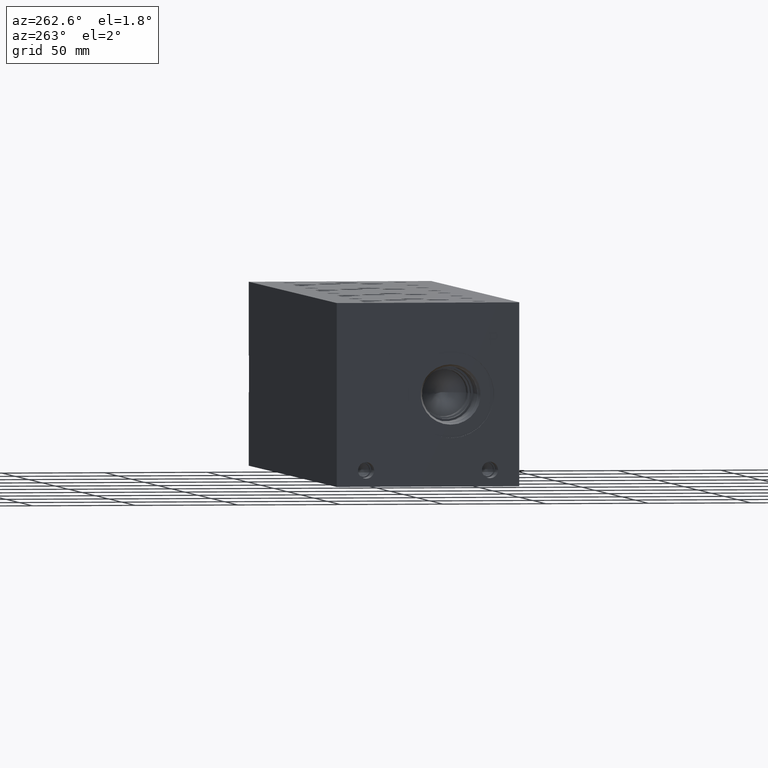
[diagram: clean part render]
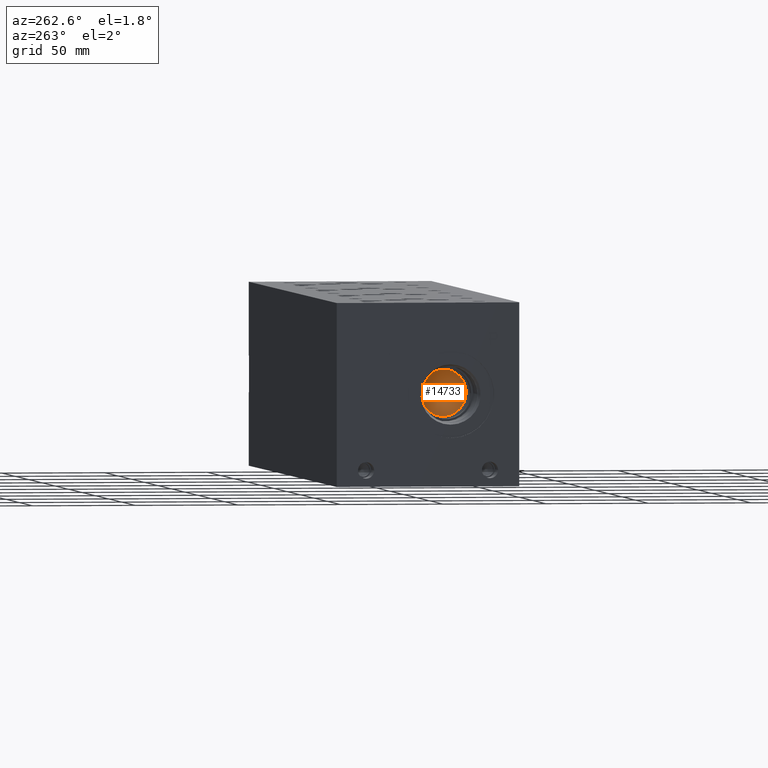
[diagram: same view with one face highlighted and labeled with its STEP entity id]
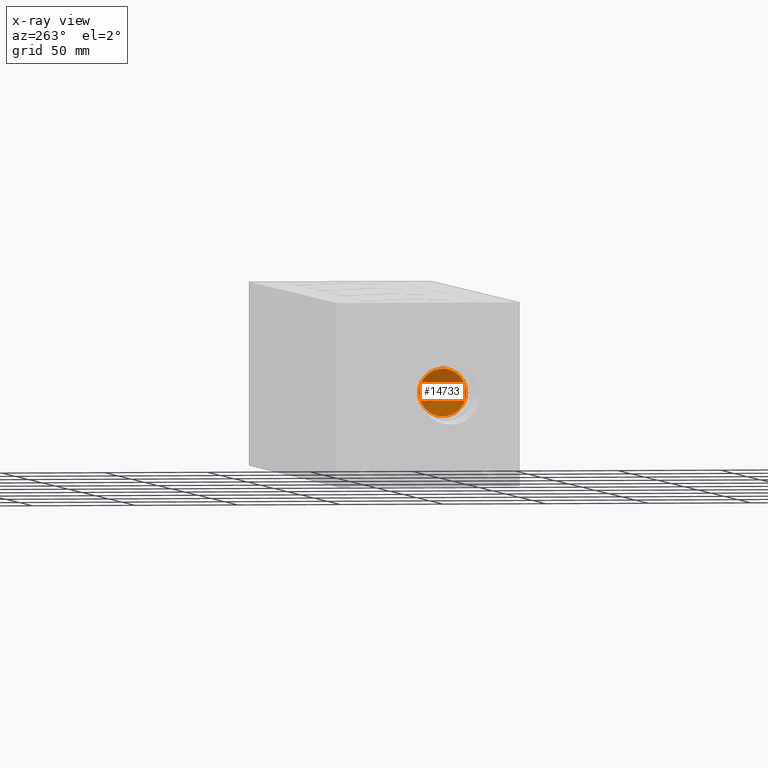
[diagram: x-ray of the same camera — body ghosted, the highlighted face saturated]
A machine part, auxiliary view. The second image highlights one B-rep face of the part: STEP entity #14733.
The next image is the same camera in x-ray: the body ghosted, the highlighted face saturated — about 0% of this face is hidden behind the body in this view.
In plain terms, the highlighted conical surface has half-angle 60 deg.
Its self-contained STEP definition (entity closure, byte-faithful):
#133=CONICAL_SURFACE('',#15400,5.7531,1.0471975511966);
#266=CIRCLE('',#15401,11.5062);
#267=CIRCLE('',#15402,11.5062);
#1865=FACE_OUTER_BOUND('',#2710,.T.);
#2710=EDGE_LOOP('',(#12144,#12145,#12146,#12147));
#4117=LINE('',#24804,#5413);
#5413=VECTOR('',#17968,5.7531);
#6631=VERTEX_POINT('',#24800);
#6632=VERTEX_POINT('',#24801);
#6633=VERTEX_POINT('',#24803);
#8573=EDGE_CURVE('',#6631,#6632,#266,.T.);
#8574=EDGE_CURVE('',#6632,#6633,#4117,.T.);
#8575=EDGE_CURVE('',#6632,#6631,#267,.T.);
#12144=ORIENTED_EDGE('',*,*,#8573,.T.);
#12145=ORIENTED_EDGE('',*,*,#8574,.T.);
#12146=ORIENTED_EDGE('',*,*,#8574,.F.);
#12147=ORIENTED_EDGE('',*,*,#8575,.T.);
#14733=ADVANCED_FACE('',(#1865),#133,.F.);
#15400=AXIS2_PLACEMENT_3D('',#24799,#17964,#17965);
#15401=AXIS2_PLACEMENT_3D('',#24802,#17966,#17967);
#15402=AXIS2_PLACEMENT_3D('',#24805,#17969,#17970);
#17964=DIRECTION('center_axis',(-1.,0.,0.));
#17965=DIRECTION('ref_axis',(0.,1.,0.));
#17966=DIRECTION('center_axis',(-1.,0.,0.));
#17967=DIRECTION('ref_axis',(0.,1.,0.));
#17968=DIRECTION('',(0.5,0.866025403784439,-1.06057523872491E-16));
#17969=DIRECTION('center_axis',(-1.,0.,0.));
#17970=DIRECTION('ref_axis',(0.,1.,0.));
#24799=CARTESIAN_POINT('Origin',(34.1885438336748,33.3248,44.45));
#24800=CARTESIAN_POINT('',(30.86699,44.831,44.45));
#24801=CARTESIAN_POINT('',(30.86699,21.8186,44.45));
#24802=CARTESIAN_POINT('Origin',(30.86699,33.3248,44.45));
#24803=CARTESIAN_POINT('',(37.5100976673497,33.3248,44.45));
#24804=CARTESIAN_POINT('',(34.1885438336748,27.5717,44.45));
#24805=CARTESIAN_POINT('Origin',(30.86699,33.3248,44.45));